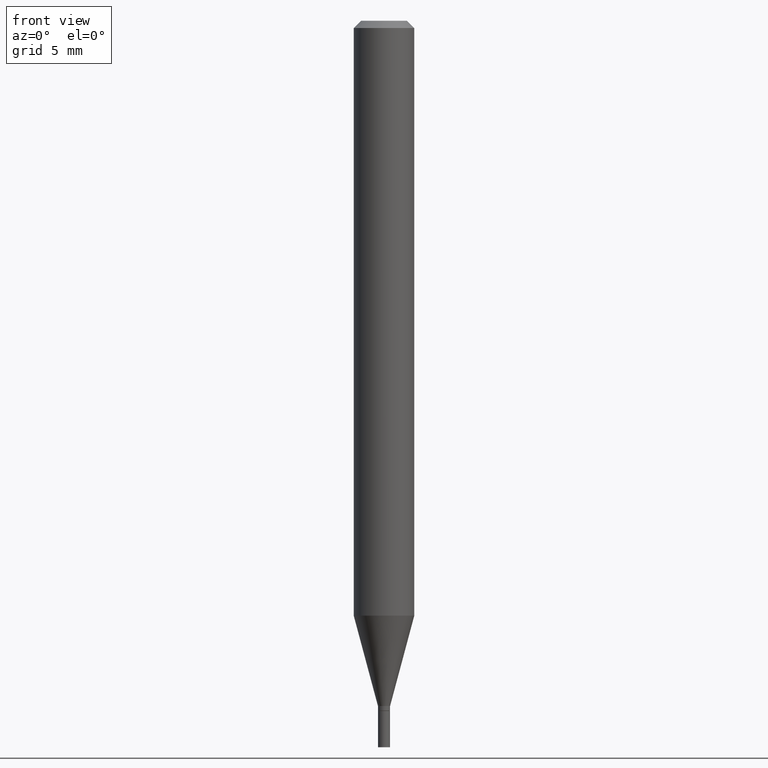
[diagram: clean part render]
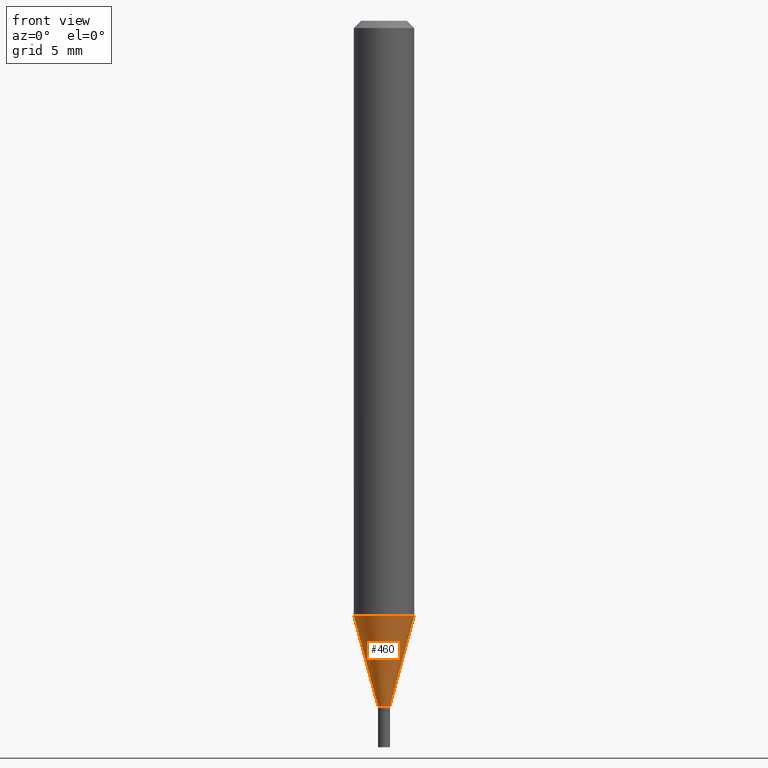
[diagram: same view with one face highlighted and labeled with its STEP entity id]
A machine part, front view. The second image highlights one B-rep face of the part: STEP entity #460.
In plain terms, the highlighted conical surface has half-angle 15 deg.
Its self-contained STEP definition (entity closure, byte-faithful):
#3 = DIRECTION ( 'NONE',  ( 1.000000000000000000, -6.982962677686258822E-15, 0.000000000000000000 ) ) ;
#19 = CARTESIAN_POINT ( 'NONE',  ( 0.06250000000000001388, -4.725361974306381794E-15, -1.228397459621556109 ) ) ;
#40 = LINE ( 'NONE', #141, #445 ) ;
#42 = AXIS2_PLACEMENT_3D ( 'NONE', #242, #92, #164 ) ;
#43 = DIRECTION ( 'NONE',  ( 1.000000000000000000, -6.982962677686258822E-15, 0.000000000000000000 ) ) ;
#66 = VERTEX_POINT ( 'NONE', #228 ) ;
#67 = DIRECTION ( 'NONE',  ( 0.2588190451025211281, 1.565188264969623940E-15, 0.9659258262890682012 ) ) ;
#73 = DIRECTION ( 'NONE',  ( -2.445468806185136597E-29, 3.491481338843145583E-15, 1.000000000000000000 ) ) ;
#74 = CARTESIAN_POINT ( 'NONE',  ( 3.460338360751968441E-29, -4.940446094463050737E-15, -1.415000000000000036 ) ) ;
#92 = DIRECTION ( 'NONE',  ( -2.445468806185136597E-29, 3.491481338843145583E-15, 1.000000000000000000 ) ) ;
#101 = DIRECTION ( 'NONE',  ( -2.445468806185136597E-29, 3.491481338843145583E-15, 1.000000000000000000 ) ) ;
#140 = EDGE_CURVE ( 'NONE', #66, #292, #275, .T. ) ;
#141 = CARTESIAN_POINT ( 'NONE',  ( -0.01249999999999992437, -4.851628252493038529E-15, -1.415000000000000036 ) ) ;
#145 = CONICAL_SURFACE ( 'NONE', #320, 0.01249999999999992437, 0.2617993877991497964 ) ;
#164 = DIRECTION ( 'NONE',  ( 1.000000000000000000, -6.982962677686262766E-15, 0.000000000000000000 ) ) ;
#175 = DIRECTION ( 'NONE',  ( -0.2588190451025211281, 5.211531920934548675E-15, 0.9659258262890682012 ) ) ;
#178 = CIRCLE ( 'NONE', #298, 0.01249999999999992437 ) ;
#180 = EDGE_CURVE ( 'NONE', #439, #335, #40, .T. ) ;
#195 = CARTESIAN_POINT ( 'NONE',  ( -0.06250000000000001388, -3.844837597100926719E-15, -1.228397459621556109 ) ) ;
#222 = VECTOR ( 'NONE', #67, 39.37007874015748143 ) ;
#228 = CARTESIAN_POINT ( 'NONE',  ( 0.01249999999999992437, -5.027733127934128282E-15, -1.415000000000000036 ) ) ;
#242 = CARTESIAN_POINT ( 'NONE',  ( 3.004007669101581496E-29, -4.288926806950990124E-15, -1.228397459621556109 ) ) ;
#275 = LINE ( 'NONE', #385, #222 ) ;
#277 = CIRCLE ( 'NONE', #42, 0.06250000000000000000 ) ;
#292 = VERTEX_POINT ( 'NONE', #19 ) ;
#295 = ORIENTED_EDGE ( 'NONE', *, *, #180, .F. ) ;
#298 = AXIS2_PLACEMENT_3D ( 'NONE', #311, #73, #3 ) ;
#311 = CARTESIAN_POINT ( 'NONE',  ( 3.460338360751968441E-29, -4.940446094463050737E-15, -1.415000000000000036 ) ) ;
#320 = AXIS2_PLACEMENT_3D ( 'NONE', #74, #101, #43 ) ;
#321 = EDGE_CURVE ( 'NONE', #335, #292, #277, .T. ) ;
#335 = VERTEX_POINT ( 'NONE', #195 ) ;
#345 = ORIENTED_EDGE ( 'NONE', *, *, #363, .T. ) ;
#350 = FACE_OUTER_BOUND ( 'NONE', #458, .T. ) ;
#360 = CARTESIAN_POINT ( 'NONE',  ( -0.01249999999999992437, -4.348232924796983019E-15, -1.415000000000000036 ) ) ;
#363 = EDGE_CURVE ( 'NONE', #439, #66, #178, .T. ) ;
#385 = CARTESIAN_POINT ( 'NONE',  ( 0.01249999999999992437, -5.027733127934128282E-15, -1.415000000000000036 ) ) ;
#399 = ORIENTED_EDGE ( 'NONE', *, *, #140, .T. ) ;
#409 = ORIENTED_EDGE ( 'NONE', *, *, #321, .F. ) ;
#439 = VERTEX_POINT ( 'NONE', #360 ) ;
#445 = VECTOR ( 'NONE', #175, 39.37007874015748143 ) ;
#458 = EDGE_LOOP ( 'NONE', ( #295, #345, #399, #409 ) ) ;
#460 = ADVANCED_FACE ( 'NONE', ( #350 ), #145, .T. ) ;